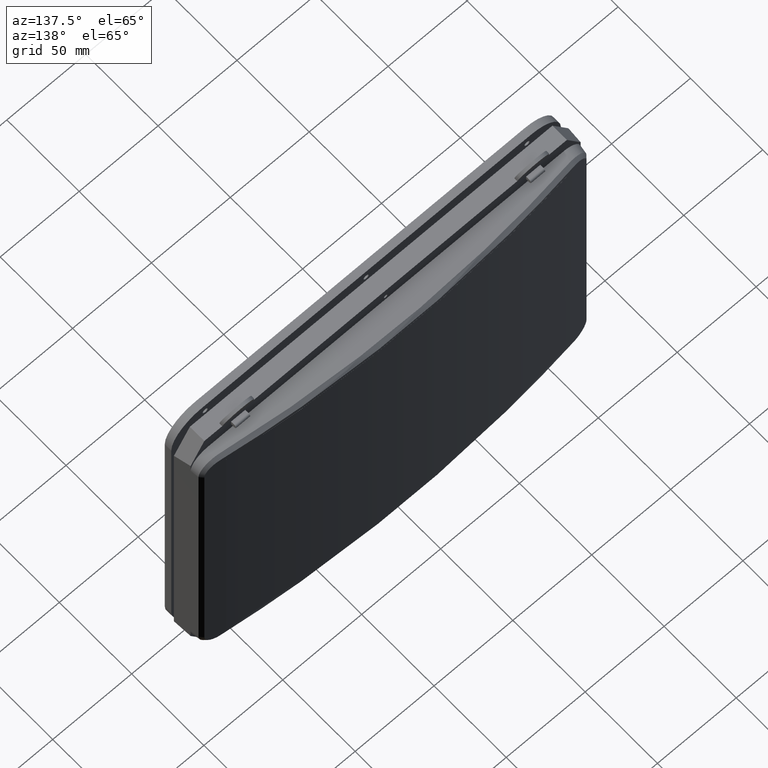
[diagram: clean part render]
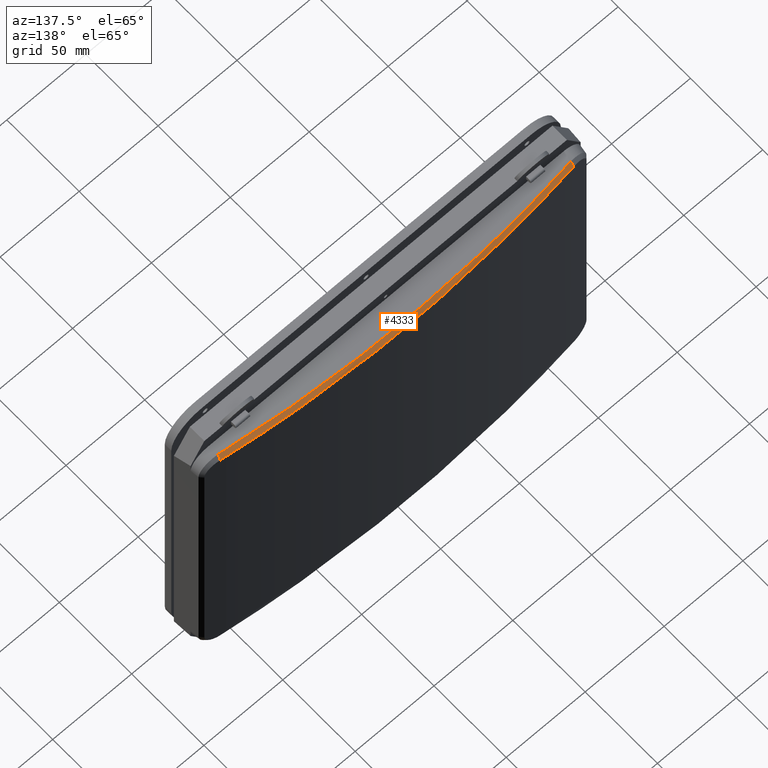
[diagram: same view with one face highlighted and labeled with its STEP entity id]
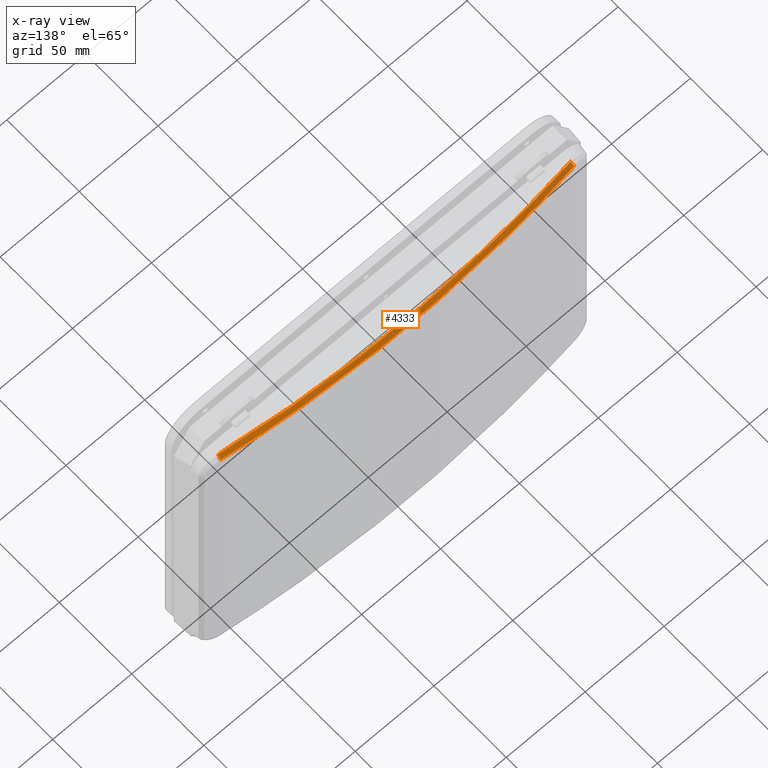
[diagram: x-ray of the same camera — body ghosted, the highlighted face saturated]
A machine part, auxiliary view. The second image highlights one B-rep face of the part: STEP entity #4333.
The next image is the same camera in x-ray: the body ghosted, the highlighted face saturated — about 0% of this face is hidden behind the body in this view.
In plain terms, the highlighted face is a freeform B-spline surface patch.
Its self-contained STEP definition (entity closure, byte-faithful):
#3374 = CARTESIAN_POINT ( 'NONE',  ( 111.7869974802819500, 15.93584936320763900, 98.98068047232170800 ) ) ;
#3845 = VERTEX_POINT ( 'NONE', #5899 ) ;
#3847 = EDGE_CURVE ( 'NONE', #3845, #3848, #5804, .T. ) ;
#3848 = VERTEX_POINT ( 'NONE', #5803 ) ;
#4027 = EDGE_CURVE ( 'NONE', #4868, #4895, #6311, .T. ) ;
#4221 = ORIENTED_EDGE ( 'NONE', *, *, #3847, .F. ) ;
#4222 = ORIENTED_EDGE ( 'NONE', *, *, #4223, .F. ) ;
#4223 = EDGE_CURVE ( 'NONE', #4895, #3845, #6709, .T. ) ;
#4224 = ORIENTED_EDGE ( 'NONE', *, *, #4027, .F. ) ;
#4333 = ADVANCED_FACE ( 'NONE', ( #6965 ), #6949, .T. ) ;
#4334 = EDGE_LOOP ( 'NONE', ( #4335, #4221, #4222, #4224 ) ) ;
#4335 = ORIENTED_EDGE ( 'NONE', *, *, #4337, .T. ) ;
#4337 = EDGE_CURVE ( 'NONE', #4868, #3848, #6982, .T. ) ;
#4868 = VERTEX_POINT ( 'NONE', #3374 ) ;
#4895 = VERTEX_POINT ( 'NONE', #5769 ) ;
#5769 = CARTESIAN_POINT ( 'NONE',  ( -111.7869974802819100, 15.93584936320786500, 98.98068047232172300 ) ) ;
#5802 = CARTESIAN_POINT ( 'NONE',  ( -112.1210491380704000, 18.10407797219326700, 96.78892687972748400 ) ) ;
#5803 = CARTESIAN_POINT ( 'NONE',  ( 112.1210491380712000, 18.10407797219315600, 96.78892687972748400 ) ) ;
#5804 = B_SPLINE_CURVE_WITH_KNOTS ( 'NONE', 3,
 ( #5802, #5832, #5831, #5830, #5829, #5828 ),
 .UNSPECIFIED., .F., .F.,
 ( 4, 2, 4 ),
 ( 0.0000000000000000000, 0.5000000000000000000, 1.000000000000000000 ),
 .UNSPECIFIED. ) ;
#5828 = CARTESIAN_POINT ( 'NONE',  ( 112.1210491380712000, 18.10407797219315600, 96.78892687972748400 ) ) ;
#5829 = CARTESIAN_POINT ( 'NONE',  ( 74.99401339848449800, 23.35934974047618300, 96.32988365604752800 ) ) ;
#5830 = CARTESIAN_POINT ( 'NONE',  ( 37.49712874563985600, 25.99999999999999600, 96.10036204420747200 ) ) ;
#5831 = CARTESIAN_POINT ( 'NONE',  ( -37.49712874563903900, 26.00000000000004300, 96.10036204420750000 ) ) ;
#5832 = CARTESIAN_POINT ( 'NONE',  ( -74.99401339848368800, 23.35934974047626200, 96.32988365604747100 ) ) ;
#5899 = CARTESIAN_POINT ( 'NONE',  ( -112.1210491380704000, 18.10407797219326700, 96.78892687972748400 ) ) ;
#6311 = B_SPLINE_CURVE_WITH_KNOTS ( 'NONE', 3,
 ( #6369, #6368, #6367, #6366, #6365, #6364 ),
 .UNSPECIFIED., .F., .F.,
 ( 4, 2, 4 ),
 ( 0.0000000000000000000, 0.5000000000000000000, 1.000000000000000000 ),
 .UNSPECIFIED. ) ;
#6364 = CARTESIAN_POINT ( 'NONE',  ( -111.7869974802819100, 15.93584936320786500, 98.98068047232172300 ) ) ;
#6365 = CARTESIAN_POINT ( 'NONE',  ( -74.77007997768444600, 21.18293016080203000, 98.52162038592767600 ) ) ;
#6366 = CARTESIAN_POINT ( 'NONE',  ( -37.50774748425728700, 23.80644732083634100, 98.29209237585891400 ) ) ;
#6367 = CARTESIAN_POINT ( 'NONE',  ( 37.50774748425817500, 23.80635436578501200, 98.29210050837214400 ) ) ;
#6368 = CARTESIAN_POINT ( 'NONE',  ( 74.77073575892096400, 21.18283720493805300, 98.52162851851196000 ) ) ;
#6369 = CARTESIAN_POINT ( 'NONE',  ( 111.7869974802819500, 15.93584936320763900, 98.98068047232170800 ) ) ;
#6706 = CARTESIAN_POINT ( 'NONE',  ( -112.1210491380704000, 18.10407797219326700, 96.78892687972748400 ) ) ;
#6707 = CARTESIAN_POINT ( 'NONE',  ( -111.7869974802819100, 15.93584936320786500, 98.98068047232172300 ) ) ;
#6709 = B_SPLINE_CURVE_WITH_KNOTS ( 'NONE', 1,
 ( #6707, #6706 ),
 .UNSPECIFIED., .F., .F.,
 ( 2, 2 ),
 ( 0.0000000000000000000, 1.000000000000000000 ),
 .UNSPECIFIED. ) ;
#6949 = B_SPLINE_SURFACE_WITH_KNOTS ( 'NONE', 3, 3, ( 
 ( #6989, #7026, #6972, #6971 ),
 ( #6973, #7028, #7027, #6988 ),
 ( #6978, #6977, #6980, #6979 ),
 ( #6991, #6990, #6981, #7015 ) ),
 .UNSPECIFIED., .F., .F., .F.,
 ( 4, 4 ),
 ( 4, 4 ),
 ( 0.0000000000000000000, 1.000000000000000000 ),
 ( 3.000978420793646100, 3.282206886385942800 ),
 .UNSPECIFIED. ) ;
#6965 = FACE_OUTER_BOUND ( 'NONE', #4334, .T. ) ;
#6971 = CARTESIAN_POINT ( 'NONE',  ( -111.7869974802810300, 15.93584936320774800, 98.98068047232175100 ) ) ;
#6972 = CARTESIAN_POINT ( 'NONE',  ( -37.75448492339639000, 26.42991800334525000, 98.06256843204677400 ) ) ;
#6973 = CARTESIAN_POINT ( 'NONE',  ( 111.8983480328783200, 16.65859223286946300, 98.25009594145697600 ) ) ;
#6975 = CARTESIAN_POINT ( 'NONE',  ( 112.1210491380712000, 18.10407797219315600, 96.78892687972748400 ) ) ;
#6976 = CARTESIAN_POINT ( 'NONE',  ( 111.7869974802819500, 15.93584936320763900, 98.98068047232170800 ) ) ;
#6977 = CARTESIAN_POINT ( 'NONE',  ( 37.82969908701148400, 27.89630993692004800, 96.60139937031728200 ) ) ;
#6978 = CARTESIAN_POINT ( 'NONE',  ( 112.0096985854747400, 17.38133510253129500, 97.51951141059223000 ) ) ;
#6979 = CARTESIAN_POINT ( 'NONE',  ( -112.0096985854739600, 17.38133510253139800, 97.51951141059223000 ) ) ;
#6980 = CARTESIAN_POINT ( 'NONE',  ( -37.82969908701065300, 27.89630993692052000, 96.60139937031728200 ) ) ;
#6981 = CARTESIAN_POINT ( 'NONE',  ( -37.86730616881777000, 28.62950590370815400, 95.87081483945253500 ) ) ;
#6982 = B_SPLINE_CURVE_WITH_KNOTS ( 'NONE', 1,
 ( #6976, #6975 ),
 .UNSPECIFIED., .F., .F.,
 ( 2, 2 ),
 ( 0.0000000000000000000, 1.000000000000000000 ),
 .UNSPECIFIED. ) ;
#6988 = CARTESIAN_POINT ( 'NONE',  ( -111.8983480328774900, 16.65859223286956900, 98.25009594145697600 ) ) ;
#6989 = CARTESIAN_POINT ( 'NONE',  ( 111.7869974802819000, 15.93584936320763600, 98.98068047232173700 ) ) ;
#6990 = CARTESIAN_POINT ( 'NONE',  ( 37.86730616881858700, 28.62950590370769200, 95.87081483945250700 ) ) ;
#6991 = CARTESIAN_POINT ( 'NONE',  ( 112.1210491380712000, 18.10407797219312100, 96.78892687972747000 ) ) ;
#7015 = CARTESIAN_POINT ( 'NONE',  ( -112.1210491380703900, 18.10407797219321700, 96.78892687972747000 ) ) ;
#7026 = CARTESIAN_POINT ( 'NONE',  ( 37.75448492339728500, 26.42991800334476700, 98.06256843204681700 ) ) ;
#7027 = CARTESIAN_POINT ( 'NONE',  ( -37.79209200520351400, 27.16311397013288300, 97.33198390118204200 ) ) ;
#7028 = CARTESIAN_POINT ( 'NONE',  ( 37.79209200520438800, 27.16311397013240700, 97.33198390118204200 ) ) ;